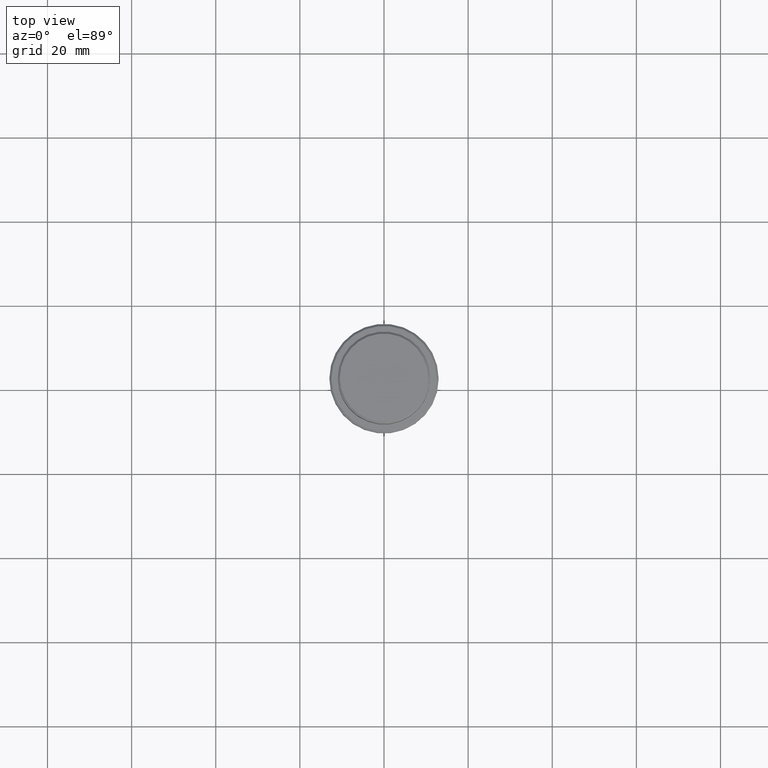
[diagram: clean part render]
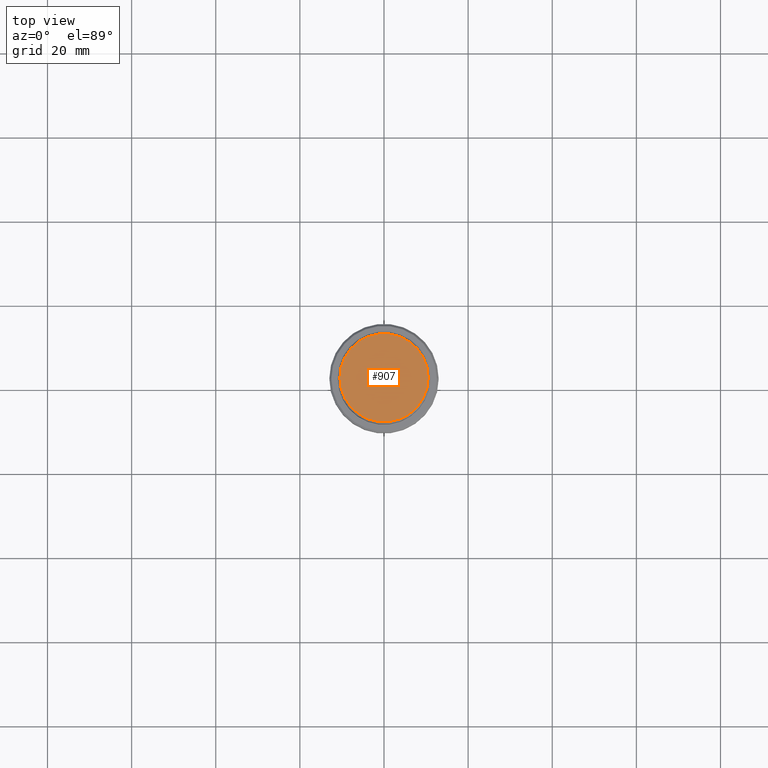
[diagram: same view with one face highlighted and labeled with its STEP entity id]
A machine part, top view. The second image highlights one B-rep face of the part: STEP entity #907.
In plain terms, the highlighted planar face has unit normal (0, -0, 1).
Its self-contained STEP definition (entity closure, byte-faithful):
#13 = EDGE_CURVE ( 'NONE', #586, #1209, #153, .T. ) ;
#126 = FACE_OUTER_BOUND ( 'NONE', #932, .T. ) ;
#153 = CIRCLE ( 'NONE', #354, 10.50000000000000888 ) ;
#155 = PLANE ( 'NONE',  #640 ) ;
#184 = CARTESIAN_POINT ( 'NONE',  ( 0.000000000000000000, 0.000000000000000000, 0.000000000000000000 ) ) ;
#343 = DIRECTION ( 'NONE',  ( 1.000000000000000000, 0.000000000000000000, 0.000000000000000000 ) ) ;
#354 = AXIS2_PLACEMENT_3D ( 'NONE', #184, #942, #894 ) ;
#364 = DIRECTION ( 'NONE',  ( -0.000000000000000000, -0.000000000000000000, 1.000000000000000000 ) ) ;
#423 = ORIENTED_EDGE ( 'NONE', *, *, #875, .T. ) ;
#586 = VERTEX_POINT ( 'NONE', #629 ) ;
#629 = CARTESIAN_POINT ( 'NONE',  ( -10.50000000000000888, 0.000000000000000000, 0.000000000000000000 ) ) ;
#640 = AXIS2_PLACEMENT_3D ( 'NONE', #774, #799, #695 ) ;
#695 = DIRECTION ( 'NONE',  ( 1.000000000000000000, 0.000000000000000000, 0.000000000000000000 ) ) ;
#774 = CARTESIAN_POINT ( 'NONE',  ( 0.000000000000000000, 0.000000000000000000, 0.000000000000000000 ) ) ;
#799 = DIRECTION ( 'NONE',  ( 0.000000000000000000, -0.000000000000000000, 1.000000000000000000 ) ) ;
#875 = EDGE_CURVE ( 'NONE', #1209, #586, #1061, .T. ) ;
#894 = DIRECTION ( 'NONE',  ( 1.000000000000000000, 0.000000000000000000, 0.000000000000000000 ) ) ;
#907 = ADVANCED_FACE ( 'NONE', ( #126 ), #155, .T. ) ;
#932 = EDGE_LOOP ( 'NONE', ( #1136, #423 ) ) ;
#942 = DIRECTION ( 'NONE',  ( -0.000000000000000000, -0.000000000000000000, 1.000000000000000000 ) ) ;
#1037 = AXIS2_PLACEMENT_3D ( 'NONE', #1200, #364, #343 ) ;
#1061 = CIRCLE ( 'NONE', #1037, 10.50000000000000888 ) ;
#1136 = ORIENTED_EDGE ( 'NONE', *, *, #13, .T. ) ;
#1200 = CARTESIAN_POINT ( 'NONE',  ( 0.000000000000000000, 0.000000000000000000, 0.000000000000000000 ) ) ;
#1209 = VERTEX_POINT ( 'NONE', #1384 ) ;
#1384 = CARTESIAN_POINT ( 'NONE',  ( 10.50000000000000888, 1.316495309083404420E-15, 0.000000000000000000 ) ) ;